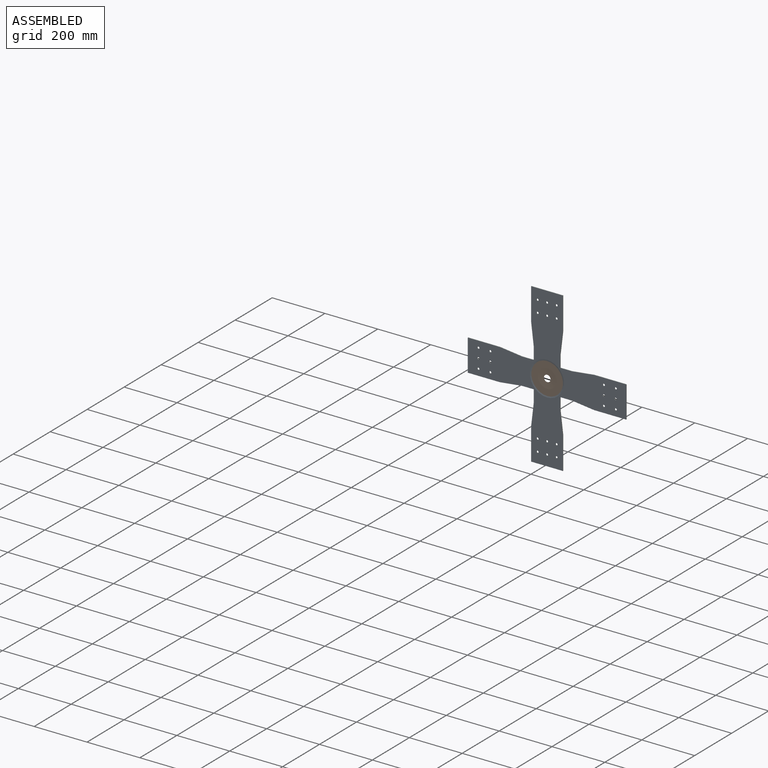
[diagram: assembled view]
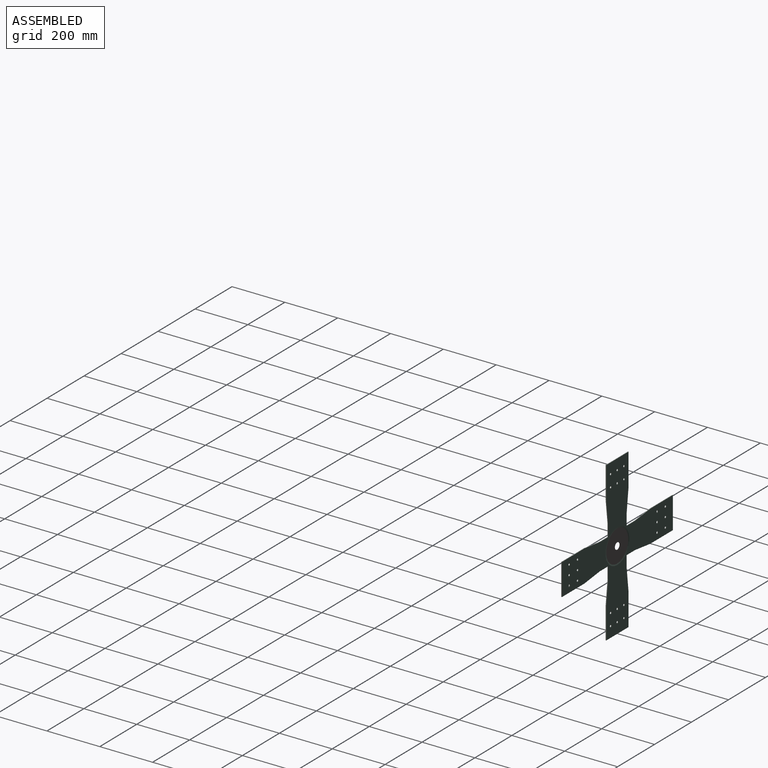
[diagram: assembled view, second angle]
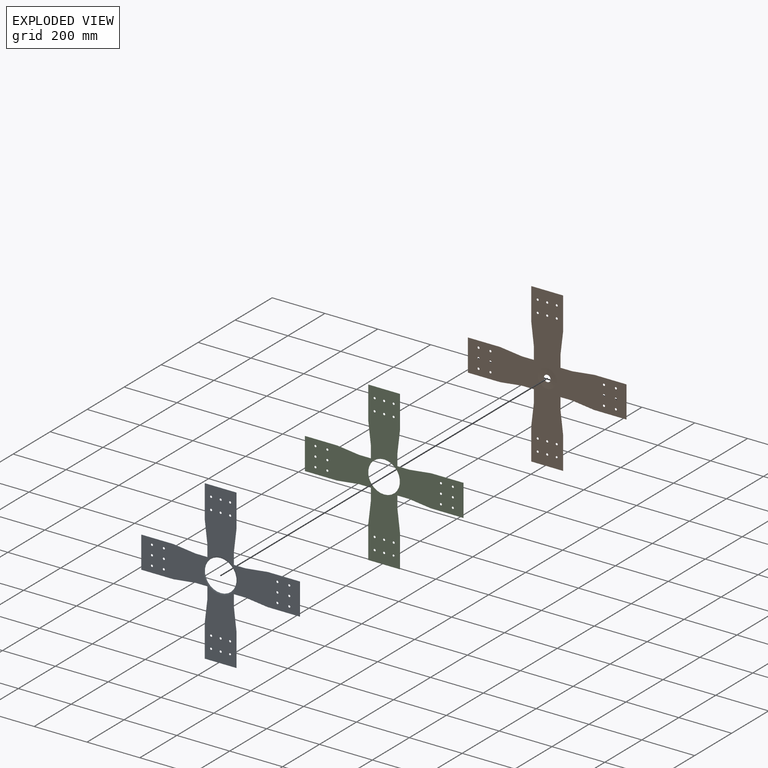
[diagram: exploded view]
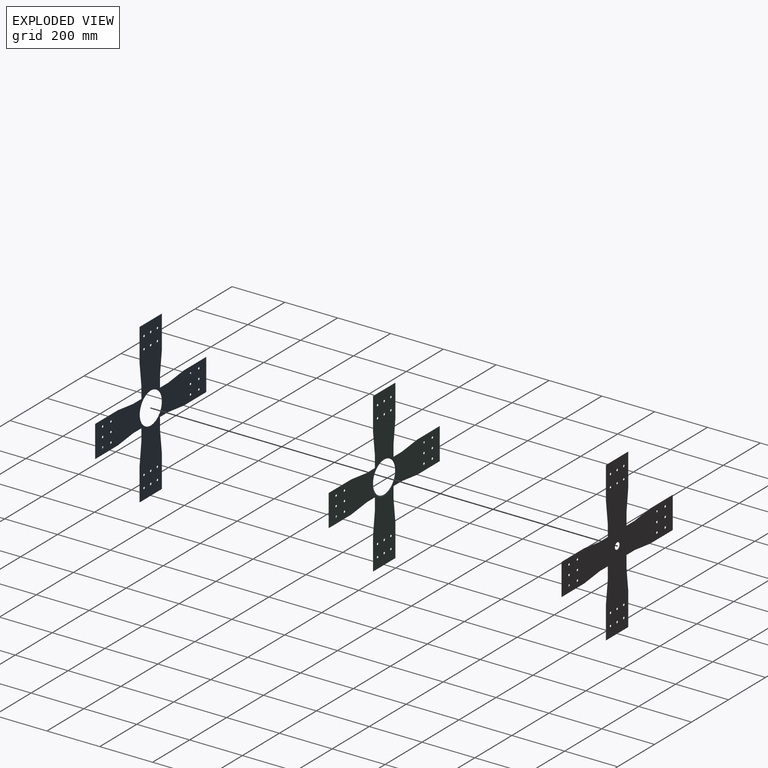
[diagram: exploded view, second angle]
ASSEMBLY  parts=3 mates=6
PART A: 72 faces, bbox 600x0.8x600 mm
  f0: plane 43.2x0.8mm, normal (-1,0,0), area 34.6mm2, adj f4,f13,f23,f53
  f1: plane 43.2x0.8mm, normal (-1,0,0), area 34.6mm2, adj f4,f14,f23,f54
  f2: plane 43.2x0.8mm, normal (1,0,0), area 34.6mm2, adj f4,f5,f23,f52
  f3: plane 43.2x0.8mm, normal (1,0,0), area 34.6mm2, adj f4,f22,f23,f51
  f4: plane 600x600mm, normal (0,-1,0), area 108795.7mm2, adj f0,f1,f2,f3,f5,f6,f7,f8
  f5: cylinder r=30mm len=3.58mm, axis (0,1,0), area 2.9mm2, adj f2,f4,f6,f23
  f6: plane 79.64x9.57mm, normal (0.99,0,-0.12), area 64.2mm2, adj f4,f5,f7,f23
  f7: cylinder r=30mm len=3.58mm, axis (0,1,0), area 2.9mm2, adj f4,f6,f8,f23
  f8: plane 120x0.8mm, normal (1,0,0), area 96mm2, adj f4,f7,f9,f23
  f9: plane 120x0.8mm, normal (0,0,1), area 96mm2, adj f4,f8,f10,f23
  f10: plane 120x0.8mm, normal (-1,0,0), area 96mm2, adj f4,f9,f11,f23
  f11: cylinder r=30mm len=3.58mm, axis (0,1,0), area 2.9mm2, adj f4,f10,f12,f23
  f12: plane 79.64x9.57mm, normal (-0.99,0,-0.12), area 64.2mm2, adj f4,f11,f13,f23
  f13: cylinder r=30mm len=3.58mm, axis (0,1,0), area 2.9mm2, adj f0,f4,f12,f23
  f14: cylinder r=30mm len=3.58mm, axis (0,1,0), area 2.9mm2, adj f1,f4,f15,f23
  f15: plane 79.64x9.57mm, normal (-0.99,0,0.12), area 64.2mm2, adj f4,f14,f16,f23
  f16: cylinder r=30mm len=3.58mm, axis (0,1,0), area 2.9mm2, adj f4,f15,f17,f23
  f17: plane 120x0.8mm, normal (-1,0,0), area 96mm2, adj f4,f16,f18,f23
  f18: plane 120x0.8mm, normal (0,0,-1), area 96mm2, adj f4,f17,f19,f23
  f19: plane 120x0.8mm, normal (1,0,0), area 96mm2, adj f4,f18,f20,f23
  f20: cylinder r=30mm len=3.58mm, axis (0,1,0), area 2.9mm2, adj f4,f19,f21,f23
  f21: plane 79.64x9.57mm, normal (0.99,0,0.12), area 64.2mm2, adj f4,f20,f22,f23
  f22: cylinder r=30mm len=3.58mm, axis (0,1,0), area 2.9mm2, adj f3,f4,f21,f23
  f23: plane 600x600mm, normal (0,1,0), area 110555.7mm2, adj f0,f1,f2,f3,f5,f6,f7,f8
  f24: cylinder r=4mm len=8mm, axis (0,-1,0), area 20.1mm2, adj f4,f23
  f25: cylinder r=4mm len=8mm, axis (0,-1,0), area 20.1mm2, adj f4,f23
  f26: cylinder r=4mm len=8mm, axis (0,-1,0), area 20.1mm2, adj f4,f23
  f27: cylinder r=4mm len=8mm, axis (0,-1,0), area 20.1mm2, adj f4,f23
  f28: cylinder r=4mm len=8mm, axis (0,-1,0), area 20.1mm2, adj f4,f23
  f29: cylinder r=4mm len=8mm, axis (0,-1,0), area 20.1mm2, adj f4,f23
  f30: cylinder r=4mm len=8mm, axis (0,-1,0), area 20.1mm2, adj f4,f23
  f31: cylinder r=4mm len=8mm, axis (0,-1,0), area 20.1mm2, adj f4,f23
  f32: cylinder r=4mm len=8mm, axis (0,-1,0), area 20.1mm2, adj f4,f23
  f33: cylinder r=4mm len=8mm, axis (0,-1,0), area 20.1mm2, adj f4,f23
  f34: cylinder r=4mm len=8mm, axis (0,-1,0), area 20.1mm2, adj f4,f23
  f35: cylinder r=4mm len=8mm, axis (0,-1,0), area 20.1mm2, adj f4,f23
  f36: cylinder r=30mm len=3.58mm, axis (0,1,0), area 2.9mm2, adj f4,f23,f37,f51
  f37: plane 79.64x9.57mm, normal (-0.12,0,-0.99), area 64.2mm2, adj f4,f23,f36,f38
  f38: cylinder r=30mm len=3.58mm, axis (0,1,0), area 2.9mm2, adj f4,f23,f37,f39
  f39: plane 120x0.8mm, normal (0,0,-1), area 96mm2, adj f4,f23,f38,f40
  f40: plane 120x0.8mm, normal (1,0,0), area 96mm2, adj f4,f23,f39,f41
  f41: plane 120x0.8mm, normal (0,0,1), area 96mm2, adj f4,f23,f40,f42
  f42: cylinder r=30mm len=3.58mm, axis (0,1,0), area 2.9mm2, adj f4,f23,f41,f43
  f43: plane 79.64x9.57mm, normal (-0.12,0,0.99), area 64.2mm2, adj f4,f23,f42,f44
  f44: cylinder r=30mm len=3.58mm, axis (0,1,0), area 2.9mm2, adj f4,f23,f43,f52
  f45: cylinder r=4mm len=8mm, axis (0,-1,0), area 20.1mm2, adj f4,f23
  f46: cylinder r=4mm len=8mm, axis (0,-1,0), area 20.1mm2, adj f4,f23
  f47: cylinder r=4mm len=8mm, axis (0,-1,0), area 20.1mm2, adj f4,f23
  f48: cylinder r=4mm len=8mm, axis (0,-1,0), area 20.1mm2, adj f4,f23
  f49: cylinder r=4mm len=8mm, axis (0,-1,0), area 20.1mm2, adj f4,f23
  f50: cylinder r=4mm len=8mm, axis (0,-1,0), area 20.1mm2, adj f4,f23
  f51: plane 43.2x0.8mm, normal (0,0,-1), area 34.6mm2, adj f3,f4,f23,f36
  f52: plane 43.2x0.8mm, normal (0,0,1), area 34.6mm2, adj f2,f4,f23,f44
  f53: plane 43.2x0.8mm, normal (0,0,1), area 34.6mm2, adj f0,f4,f23,f55
  f54: plane 43.2x0.8mm, normal (0,0,-1), area 34.6mm2, adj f1,f4,f23,f63
  f55: cylinder r=30mm len=3.58mm, axis (0,1,0), area 2.9mm2, adj f4,f23,f53,f56
  f56: plane 79.64x9.57mm, normal (0.12,0,0.99), area 64.2mm2, adj f4,f23,f55,f57
  f57: cylinder r=30mm len=3.58mm, axis (0,1,0), area 2.9mm2, adj f4,f23,f56,f58
  f58: plane 120x0.8mm, normal (0,0,1), area 96mm2, adj f4,f23,f57,f59
  f59: plane 120x0.8mm, normal (-1,0,0), area 96mm2, adj f4,f23,f58,f60
  f60: plane 120x0.8mm, normal (0,0,-1), area 96mm2, adj f4,f23,f59,f61
  f61: cylinder r=30mm len=3.58mm, axis (0,1,0), area 2.9mm2, adj f4,f23,f60,f62
  f62: plane 79.64x9.57mm, normal (0.12,0,-0.99), area 64.2mm2, adj f4,f23,f61,f63
  f63: cylinder r=30mm len=3.58mm, axis (0,1,0), area 2.9mm2, adj f4,f23,f54,f62
  f64: cylinder r=4mm len=8mm, axis (0,-1,0), area 20.1mm2, adj f4,f23
  f65: cylinder r=4mm len=8mm, axis (0,-1,0), area 20.1mm2, adj f4,f23
  f66: cylinder r=4mm len=8mm, axis (0,-1,0), area 20.1mm2, adj f4,f23
  f67: cylinder r=4mm len=8mm, axis (0,-1,0), area 20.1mm2, adj f4,f23
  f68: cylinder r=4mm len=8mm, axis (0,-1,0), area 20.1mm2, adj f4,f23
  f69: cylinder r=4mm len=8mm, axis (0,-1,0), area 20.1mm2, adj f4,f23
  f70: cylinder r=60mm len=120mm, axis (0,-1,0), area 2.5mm2, adj f23,f71
  f71: cone r=60mm half-angle=80deg, axis (0,-1,0), area 1787.2mm2, adj f4,f70
PART B: 71 faces, bbox 600x0.8x600 mm
  f0: plane 43.2x0.8mm, normal (-1,0,0), area 34.6mm2, adj f4,f13,f23,f54
  f1: plane 43.2x0.8mm, normal (-1,0,0), area 34.6mm2, adj f4,f14,f23,f55
  f2: plane 43.2x0.8mm, normal (1,0,0), area 34.6mm2, adj f4,f5,f23,f53
  f3: plane 43.2x0.8mm, normal (1,0,0), area 34.6mm2, adj f4,f22,f23,f52
  f4: plane 600x600mm, normal (0,-1,0), area 117926.6mm2, adj f0,f1,f2,f3,f5,f6,f7,f8
  f5: cylinder r=30mm len=3.58mm, axis (0,1,0), area 2.9mm2, adj f2,f4,f6,f23
  f6: plane 79.64x9.57mm, normal (0.99,0,-0.12), area 64.2mm2, adj f4,f5,f7,f23
  f7: cylinder r=30mm len=3.58mm, axis (0,1,0), area 2.9mm2, adj f4,f6,f8,f23
  f8: plane 120x0.8mm, normal (1,0,0), area 96mm2, adj f4,f7,f9,f23
  f9: plane 120x0.8mm, normal (0,0,1), area 96mm2, adj f4,f8,f10,f23
  f10: plane 120x0.8mm, normal (-1,0,0), area 96mm2, adj f4,f9,f11,f23
  f11: cylinder r=30mm len=3.58mm, axis (0,1,0), area 2.9mm2, adj f4,f10,f12,f23
  f12: plane 79.64x9.57mm, normal (-0.99,0,-0.12), area 64.2mm2, adj f4,f11,f13,f23
  f13: cylinder r=30mm len=3.58mm, axis (0,1,0), area 2.9mm2, adj f0,f4,f12,f23
  f14: cylinder r=30mm len=3.58mm, axis (0,1,0), area 2.9mm2, adj f1,f4,f15,f23
  f15: plane 79.64x9.57mm, normal (-0.99,0,0.12), area 64.2mm2, adj f4,f14,f16,f23
  f16: cylinder r=30mm len=3.58mm, axis (0,1,0), area 2.9mm2, adj f4,f15,f17,f23
  f17: plane 120x0.8mm, normal (-1,0,0), area 96mm2, adj f4,f16,f18,f23
  f18: plane 120x0.8mm, normal (0,0,-1), area 96mm2, adj f4,f17,f19,f23
  f19: plane 120x0.8mm, normal (1,0,0), area 96mm2, adj f4,f18,f20,f23
  f20: cylinder r=30mm len=3.58mm, axis (0,1,0), area 2.9mm2, adj f4,f19,f21,f23
  f21: plane 79.64x9.57mm, normal (0.99,0,0.12), area 64.2mm2, adj f4,f20,f22,f23
  f22: cylinder r=30mm len=3.58mm, axis (0,1,0), area 2.9mm2, adj f3,f4,f21,f23
  f23: plane 600x600mm, normal (0,1,0), area 121374.6mm2, adj f0,f1,f2,f3,f5,f6,f7,f8
  f24: cylinder r=4mm len=8mm, axis (0,-1,0), area 20.1mm2, adj f4,f23
  f25: cylinder r=4mm len=8mm, axis (0,-1,0), area 20.1mm2, adj f4,f23
  f26: cylinder r=4mm len=8mm, axis (0,-1,0), area 20.1mm2, adj f4,f23
  f27: cylinder r=4mm len=8mm, axis (0,-1,0), area 20.1mm2, adj f4,f23
  f28: cylinder r=4mm len=8mm, axis (0,-1,0), area 20.1mm2, adj f4,f23
  f29: cylinder r=4mm len=8mm, axis (0,-1,0), area 20.1mm2, adj f4,f23
  f30: cylinder r=4mm len=8mm, axis (0,-1,0), area 20.1mm2, adj f4,f23
  f31: cylinder r=4mm len=8mm, axis (0,-1,0), area 20.1mm2, adj f4,f23
  f32: cylinder r=4mm len=8mm, axis (0,-1,0), area 20.1mm2, adj f4,f23
  f33: cylinder r=4mm len=8mm, axis (0,-1,0), area 20.1mm2, adj f4,f23
  f34: cylinder r=4mm len=8mm, axis (0,-1,0), area 20.1mm2, adj f4,f23
  f35: cylinder r=4mm len=8mm, axis (0,-1,0), area 20.1mm2, adj f4,f23
  f36: cone r=35.41mm half-angle=88deg, axis (0,-1,0), area 3450.1mm2, adj f4,f23
  f37: cylinder r=30mm len=3.58mm, axis (0,1,0), area 2.9mm2, adj f4,f23,f38,f52
  f38: plane 79.64x9.57mm, normal (-0.12,0,-0.99), area 64.2mm2, adj f4,f23,f37,f39
  f39: cylinder r=30mm len=3.58mm, axis (0,1,0), area 2.9mm2, adj f4,f23,f38,f40
  f40: plane 120x0.8mm, normal (0,0,-1), area 96mm2, adj f4,f23,f39,f41
  f41: plane 120x0.8mm, normal (1,0,0), area 96mm2, adj f4,f23,f40,f42
  f42: plane 120x0.8mm, normal (0,0,1), area 96mm2, adj f4,f23,f41,f43
  f43: cylinder r=30mm len=3.58mm, axis (0,1,0), area 2.9mm2, adj f4,f23,f42,f44
  f44: plane 79.64x9.57mm, normal (-0.12,0,0.99), area 64.2mm2, adj f4,f23,f43,f45
  f45: cylinder r=30mm len=3.58mm, axis (0,1,0), area 2.9mm2, adj f4,f23,f44,f53
  f46: cylinder r=4mm len=8mm, axis (0,-1,0), area 20.1mm2, adj f4,f23
  f47: cylinder r=4mm len=8mm, axis (0,-1,0), area 20.1mm2, adj f4,f23
  f48: cylinder r=4mm len=8mm, axis (0,-1,0), area 20.1mm2, adj f4,f23
  f49: cylinder r=4mm len=8mm, axis (0,-1,0), area 20.1mm2, adj f4,f23
  f50: cylinder r=4mm len=8mm, axis (0,-1,0), area 20.1mm2, adj f4,f23
  f51: cylinder r=4mm len=8mm, axis (0,-1,0), area 20.1mm2, adj f4,f23
  f52: plane 43.2x0.8mm, normal (0,0,-1), area 34.6mm2, adj f3,f4,f23,f37
  f53: plane 43.2x0.8mm, normal (0,0,1), area 34.6mm2, adj f2,f4,f23,f45
  f54: plane 43.2x0.8mm, normal (0,0,1), area 34.6mm2, adj f0,f4,f23,f56
  f55: plane 43.2x0.8mm, normal (0,0,-1), area 34.6mm2, adj f1,f4,f23,f64
  f56: cylinder r=30mm len=3.58mm, axis (0,1,0), area 2.9mm2, adj f4,f23,f54,f57
  f57: plane 79.64x9.57mm, normal (0.12,0,0.99), area 64.2mm2, adj f4,f23,f56,f58
  f58: cylinder r=30mm len=3.58mm, axis (0,1,0), area 2.9mm2, adj f4,f23,f57,f59
  f59: plane 120x0.8mm, normal (0,0,1), area 96mm2, adj f4,f23,f58,f60
  f60: plane 120x0.8mm, normal (-1,0,0), area 96mm2, adj f4,f23,f59,f61
  f61: plane 120x0.8mm, normal (0,0,-1), area 96mm2, adj f4,f23,f60,f62
  f62: cylinder r=30mm len=3.58mm, axis (0,1,0), area 2.9mm2, adj f4,f23,f61,f63
  f63: plane 79.64x9.57mm, normal (0.12,0,-0.99), area 64.2mm2, adj f4,f23,f62,f64
  f64: cylinder r=30mm len=3.58mm, axis (0,1,0), area 2.9mm2, adj f4,f23,f55,f63
  f65: cylinder r=4mm len=8mm, axis (0,-1,0), area 20.1mm2, adj f4,f23
  f66: cylinder r=4mm len=8mm, axis (0,-1,0), area 20.1mm2, adj f4,f23
  f67: cylinder r=4mm len=8mm, axis (0,-1,0), area 20.1mm2, adj f4,f23
  f68: cylinder r=4mm len=8mm, axis (0,-1,0), area 20.1mm2, adj f4,f23
  f69: cylinder r=4mm len=8mm, axis (0,-1,0), area 20.1mm2, adj f4,f23
  f70: cylinder r=4mm len=8mm, axis (0,-1,0), area 20.1mm2, adj f4,f23
PART C: same geometry as A
PLACE A t=(-236.6,54.33,-77.55)mm
PLACE B t=(-236.6,55.13,-77.55)mm fixed
PLACE C rot(axis=(1,0,0),180deg) t=(-236.6,55.13,522.45)mm
MATE planar A.f70 <-> B.f36  axis (0,1,0) through (-176.6,54.33,222.45)mm
MATE planar B.f8 <-> A.f8  axis (1,0,0) through (-116.6,54.73,462.45)mm
MATE planar C.f18 <-> B.f9  axis (0,0,1) through (-176.6,55.53,522.45)mm
MATE planar C.f40 <-> B.f41  axis (1,0,0) through (123.4,55.53,222.45)mm
MATE planar B.f9 <-> A.f9  axis (0,0,1) through (-176.6,54.73,522.45)mm
MATE planar B.f11 <-> C.f11  axis (0,1,0) through (-206.6,55.13,402.45)mm
